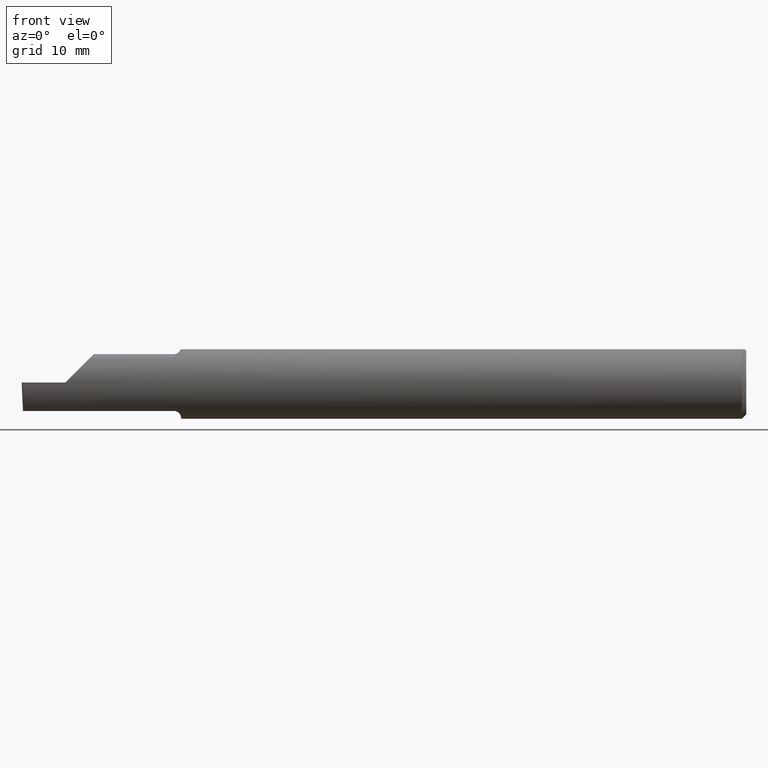
[diagram: clean part render]
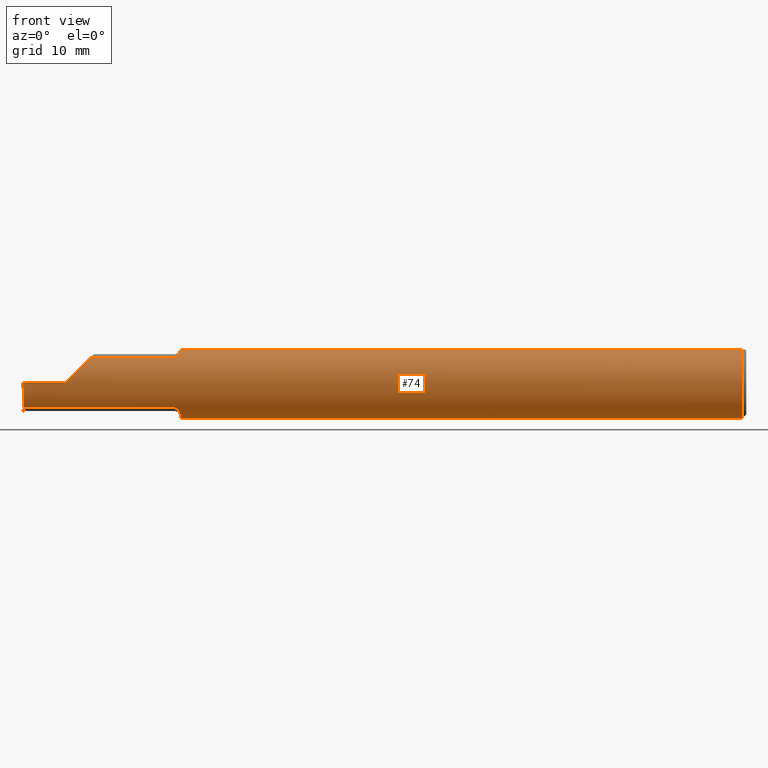
[diagram: same view with one face highlighted and labeled with its STEP entity id]
A machine part, front view. The second image highlights one B-rep face of the part: STEP entity #74.
In plain terms, the highlighted cylindrical surface (edge-blend (fillet) strip) has radius 3.1712 mm, axis along (1, -0, -0).
Its self-contained STEP definition (entity closure, byte-faithful):
#2 = LINE ( 'NONE', #576, #538 ) ;
#8 = CARTESIAN_POINT ( 'NONE',  ( -0.01499999999999987454, 0.04895916665957496944, 0.1148500000000000076 ) ) ;
#22 = CARTESIAN_POINT ( 'NONE',  ( -1.964990549600692527, -0.08554147198584205469, 0.09096407607062373391 ) ) ;
#26 = DIRECTION ( 'NONE',  ( 1.000000000000000000, -0.000000000000000000, -0.000000000000000000 ) ) ;
#35 = EDGE_CURVE ( 'NONE', #566, #480, #326, .T. ) ;
#38 = CARTESIAN_POINT ( 'NONE',  ( -1.960226514481664850, -0.07966992494485836129, -0.09623747760188229583 ) ) ;
#39 = LINE ( 'NONE', #390, #105 ) ;
#41 = CIRCLE ( 'NONE', #286, 0.1248500000000000026 ) ;
#44 = CARTESIAN_POINT ( 'NONE',  ( -1.951227715916084682, -0.04883822427082837314, -0.1150249279297937549 ) ) ;
#54 = CARTESIAN_POINT ( 'NONE',  ( -2.494835769263151537, -0.1248351010429638308, -0.03262966116142157480 ) ) ;
#56 = EDGE_CURVE ( 'NONE', #135, #236, #456, .T. ) ;
#58 = CARTESIAN_POINT ( 'NONE',  ( -0.01499999999999999944, 0.000000000000000000, 0.000000000000000000 ) ) ;
#62 = B_SPLINE_CURVE_WITH_KNOTS ( 'NONE', 3,
 ( #584, #279, #514, #396 ),
 .UNSPECIFIED., .F., .F.,
 ( 4, 4 ),
 ( 0.001640801893433564652, 0.002088276671954478626 ),
 .UNSPECIFIED. ) ;
#66 = DIRECTION ( 'NONE',  ( -1.000000000000000000, 0.000000000000000000, 0.000000000000000000 ) ) ;
#74 = ADVANCED_FACE ( 'NONE', ( #572 ), #506, .T. ) ;
#84 = CARTESIAN_POINT ( 'NONE',  ( -1.951326891871145719, -0.04895916665872705742, 0.1148500000000000076 ) ) ;
#91 = ORIENTED_EDGE ( 'NONE', *, *, #191, .T. ) ;
#92 = LINE ( 'NONE', #681, #148 ) ;
#94 = CARTESIAN_POINT ( 'NONE',  ( 0.000000000000000000, 0.000000000000000000, 0.000000000000000000 ) ) ;
#95 = LINE ( 'NONE', #588, #288 ) ;
#96 = B_SPLINE_CURVE_WITH_KNOTS ( 'NONE', 3,
 ( #348, #394, #99, #104, #339, #38, #283, #518, #771, #589, #44, #229 ),
 .UNSPECIFIED., .F., .F.,
 ( 4, 2, 2, 2, 2, 4 ),
 ( 1.963988863383734834E-07, 0.0002052720857047456236, 0.0004103477725231529033, 0.0008204991461599568919, 0.001230650519796760555, 0.001640801893433564652 ),
 .UNSPECIFIED. ) ;
#99 = CARTESIAN_POINT ( 'NONE',  ( -1.969784064659362954, -0.08911389870154516613, -0.08746251087962811366 ) ) ;
#104 = CARTESIAN_POINT ( 'NONE',  ( -1.965875432832431491, -0.08647060418110406876, -0.09007670266896511402 ) ) ;
#105 = VECTOR ( 'NONE', #343, 39.37007874015748854 ) ;
#107 = EDGE_CURVE ( 'NONE', #236, #480, #2, .T. ) ;
#117 = DIRECTION ( 'NONE',  ( 1.000000000000000000, -0.000000000000000000, -0.000000000000000000 ) ) ;
#118 = CARTESIAN_POINT ( 'NONE',  ( -1.950756598855983848, -0.04385000000000002091, -0.1168961077196328247 ) ) ;
#120 = VERTEX_POINT ( 'NONE', #8 ) ;
#124 = VERTEX_POINT ( 'NONE', #483 ) ;
#126 = CARTESIAN_POINT ( 'NONE',  ( -1.950000000000000178, 0.000000000000000000, 0.000000000000000000 ) ) ;
#130 = EDGE_CURVE ( 'NONE', #140, #124, #341, .T. ) ;
#135 = VERTEX_POINT ( 'NONE', #225 ) ;
#140 = VERTEX_POINT ( 'NONE', #526 ) ;
#148 = VECTOR ( 'NONE', #26, 39.37007874015748143 ) ;
#149 = CARTESIAN_POINT ( 'NONE',  ( -1.952489051389807884, -0.05793447593674593693, 0.1110239341513688666 ) ) ;
#154 = CARTESIAN_POINT ( 'NONE',  ( -2.263628075281542529, -0.09015216647662421812, 0.08637192471845822617 ) ) ;
#169 = DIRECTION ( 'NONE',  ( -1.000000000000000000, 0.000000000000000000, 0.000000000000000000 ) ) ;
#172 = CARTESIAN_POINT ( 'NONE',  ( -2.495690077103728921, -0.1248499999950965084, 1.733801157256528502E-17 ) ) ;
#176 = VERTEX_POINT ( 'NONE', #648 ) ;
#185 = CARTESIAN_POINT ( 'NONE',  ( -2.205999999999999961, -0.09015216647662482874, -0.08637192471845768493 ) ) ;
#187 = CARTESIAN_POINT ( 'NONE',  ( -2.350000000000000089, -0.1248500000000000026, 1.836970198721028825E-17 ) ) ;
#189 = CARTESIAN_POINT ( 'NONE',  ( 0.000000000000000000, -0.04895916665957456698, 0.1148500000000000076 ) ) ;
#191 = EDGE_CURVE ( 'NONE', #746, #301, #62, .T. ) ;
#225 = CARTESIAN_POINT ( 'NONE',  ( -1.951326891871145719, -0.04895916665872705742, 0.1148500000000000076 ) ) ;
#229 = CARTESIAN_POINT ( 'NONE',  ( -1.950756598855983848, -0.04385000000000002091, -0.1168961077196328247 ) ) ;
#230 = EDGE_CURVE ( 'NONE', #243, #746, #96, .T. ) ;
#235 = DIRECTION ( 'NONE',  ( 0.000000000000000000, 0.000000000000000000, 1.000000000000000000 ) ) ;
#236 = VERTEX_POINT ( 'NONE', #773 ) ;
#237 = DIRECTION ( 'NONE',  ( 0.000000000000000000, 0.000000000000000000, -1.000000000000000000 ) ) ;
#243 = VERTEX_POINT ( 'NONE', #472 ) ;
#247 = DIRECTION ( 'NONE',  ( -1.000000000000000000, 0.000000000000000000, 0.000000000000000000 ) ) ;
#251 = EDGE_CURVE ( 'NONE', #120, #140, #41, .T. ) ;
#254 = CARTESIAN_POINT ( 'NONE',  ( -1.972502509400819060, -0.09015216647698111319, 0.08637192471808595451 ) ) ;
#256 = ORIENTED_EDGE ( 'NONE', *, *, #330, .T. ) ;
#262 = EDGE_CURVE ( 'NONE', #124, #135, #782, .T. ) ;
#269 = DIRECTION ( 'NONE',  ( 1.000000000000000000, -0.000000000000000000, -0.000000000000000000 ) ) ;
#270 = VERTEX_POINT ( 'NONE', #353 ) ;
#272 = CARTESIAN_POINT ( 'NONE',  ( -1.974999999999999867, -0.09015216647662482874, 0.08637192471845768493 ) ) ;
#274 = EDGE_CURVE ( 'NONE', #176, #243, #475, .T. ) ;
#279 = CARTESIAN_POINT ( 'NONE',  ( -1.950242610568498236, -0.03840785182185597196, -0.1189375631818110762 ) ) ;
#283 = CARTESIAN_POINT ( 'NONE',  ( -1.958278800716857448, -0.07573621487658313556, -0.09938639293507189887 ) ) ;
#286 = AXIS2_PLACEMENT_3D ( 'NONE', #58, #247, #306 ) ;
#288 = VECTOR ( 'NONE', #458, 39.37007874015748143 ) ;
#292 = ORIENTED_EDGE ( 'NONE', *, *, #56, .T. ) ;
#301 = VERTEX_POINT ( 'NONE', #779 ) ;
#306 = DIRECTION ( 'NONE',  ( 0.000000000000000000, 0.000000000000000000, 1.000000000000000000 ) ) ;
#309 = DIRECTION ( 'NONE',  ( 0.000000000000000000, 0.000000000000000000, 1.000000000000000000 ) ) ;
#314 = VERTEX_POINT ( 'NONE', #720 ) ;
#320 = VERTEX_POINT ( 'NONE', #172 ) ;
#326 =( BOUNDED_CURVE ( )  B_SPLINE_CURVE ( 3, ( #187, #565, #631, #389 ),
 .UNSPECIFIED., .F., .T. ) 
 B_SPLINE_CURVE_WITH_KNOTS ( ( 4, 4 ),
 ( 4.712388980384690562, 5.476375539154175520 ),
 .UNSPECIFIED. ) 
 CURVE ( )  GEOMETRIC_REPRESENTATION_ITEM ( )  RATIONAL_B_SPLINE_CURVE ( ( 1.000000000000000000, 0.9519489620492029847, 0.9519489620492029847, 1.000000000000000000 ) ) 
 REPRESENTATION_ITEM ( '' )  );
#329 = CARTESIAN_POINT ( 'NONE',  ( -1.966486677516400494, -0.08696861555842282099, 0.08959154238194093345 ) ) ;
#330 = EDGE_CURVE ( 'NONE', #301, #314, #454, .T. ) ;
#339 = CARTESIAN_POINT ( 'NONE',  ( -1.964311064734461709, -0.08485061678078631431, -0.09161469295857084527 ) ) ;
#341 = CIRCLE ( 'NONE', #581, 0.1248500000000000026 ) ;
#343 = DIRECTION ( 'NONE',  ( -0.02617296143184116158, -0.0004568507411563384147, 0.9996573249755575929 ) ) ;
#348 = CARTESIAN_POINT ( 'NONE',  ( -1.974999999999999867, -0.09015216647662478711, -0.08637192471845771269 ) ) ;
#353 = CARTESIAN_POINT ( 'NONE',  ( -2.495688583004118666, -0.1248499869621840785, -5.705736120969982501E-05 ) ) ;
#356 = CARTESIAN_POINT ( 'NONE',  ( -2.494033449660867152, -0.09015216647662482874, -0.08637192471845768493 ) ) ;
#359 = CARTESIAN_POINT ( 'NONE',  ( -2.494256244271084721, -0.1126860773865890480, -0.06285177167860772629 ) ) ;
#360 = EDGE_CURVE ( 'NONE', #176, #270, #712, .T. ) ;
#364 = DIRECTION ( 'NONE',  ( -1.000000000000000000, 0.000000000000000000, 0.000000000000000000 ) ) ;
#370 = ORIENTED_EDGE ( 'NONE', *, *, #35, .F. ) ;
#389 = CARTESIAN_POINT ( 'NONE',  ( -2.263628075281542529, -0.09015216647662421812, 0.08637192471845822617 ) ) ;
#390 = CARTESIAN_POINT ( 'NONE',  ( -2.493072779947982820, -0.1248043149033065402, -0.09996577117162359916 ) ) ;
#394 = CARTESIAN_POINT ( 'NONE',  ( -1.972259638933031578, -0.09015216647662445404, -0.08637192471845808739 ) ) ;
#396 = CARTESIAN_POINT ( 'NONE',  ( -1.950000000000000178, -0.02715330672748003313, -0.1218614805168695830 ) ) ;
#402 = CARTESIAN_POINT ( 'NONE',  ( -0.01499999999999999944, 0.000000000000000000, 0.000000000000000000 ) ) ;
#404 = EDGE_CURVE ( 'NONE', #320, #566, #92, .T. ) ;
#417 = ORIENTED_EDGE ( 'NONE', *, *, #107, .T. ) ;
#418 = DIRECTION ( 'NONE',  ( 1.000000000000000000, -0.000000000000000000, -0.000000000000000000 ) ) ;
#426 = ORIENTED_EDGE ( 'NONE', *, *, #274, .T. ) ;
#427 = ORIENTED_EDGE ( 'NONE', *, *, #586, .F. ) ;
#433 = EDGE_LOOP ( 'NONE', ( #426, #530, #91, #256, #777, #686, #789, #464, #292, #417, #370, #674, #427, #683 ) ) ;
#454 = CIRCLE ( 'NONE', #724, 0.1248500000000000026 ) ;
#456 = B_SPLINE_CURVE_WITH_KNOTS ( 'NONE', 3,
 ( #84, #149, #602, #479, #606, #22, #329, #635, #254, #272 ),
 .UNSPECIFIED., .F., .F.,
 ( 4, 2, 2, 2, 4 ),
 ( 5.065792320370670028E-07, 0.0007388407001989994154, 0.001108007760682480809, 0.001292591290924221615, 0.001477174821165962420 ),
 .UNSPECIFIED. ) ;
#458 = DIRECTION ( 'NONE',  ( 1.000000000000000000, -0.000000000000000000, -0.000000000000000000 ) ) ;
#464 = ORIENTED_EDGE ( 'NONE', *, *, #262, .T. ) ;
#472 = CARTESIAN_POINT ( 'NONE',  ( -1.974999999999999867, -0.09015216647662478711, -0.08637192471845771269 ) ) ;
#475 = LINE ( 'NONE', #185, #493 ) ;
#479 = CARTESIAN_POINT ( 'NONE',  ( -1.959117122045868520, -0.07738857672815942224, 0.09808127502738656078 ) ) ;
#480 = VERTEX_POINT ( 'NONE', #154 ) ;
#483 = CARTESIAN_POINT ( 'NONE',  ( -0.01499999999999999944, -0.04895916665957456698, 0.1148500000000000076 ) ) ;
#493 = VECTOR ( 'NONE', #418, 39.37007874015748143 ) ;
#506 = CYLINDRICAL_SURFACE ( 'NONE', #764, 0.1248500000000000026 ) ;
#514 = CARTESIAN_POINT ( 'NONE',  ( -1.949999999999999956, -0.03284222813693380566, -0.1205938689030582739 ) ) ;
#518 = CARTESIAN_POINT ( 'NONE',  ( -1.955064983703084458, -0.06736177101644112708, -0.1052426774175050372 ) ) ;
#526 = CARTESIAN_POINT ( 'NONE',  ( -0.01499999999999999944, 0.000000000000000000, -0.1248500000000000026 ) ) ;
#530 = ORIENTED_EDGE ( 'NONE', *, *, #230, .T. ) ;
#536 = CARTESIAN_POINT ( 'NONE',  ( -2.495688583004118666, -0.1248499869621840785, -5.705736120969982501E-05 ) ) ;
#538 = VECTOR ( 'NONE', #66, 39.37007874015748143 ) ;
#549 = EDGE_CURVE ( 'NONE', #314, #120, #95, .T. ) ;
#565 = CARTESIAN_POINT ( 'NONE',  ( -2.317406910344188997, -0.1248500000000000304, 0.03259308965581166062 ) ) ;
#566 = VERTEX_POINT ( 'NONE', #704 ) ;
#572 = FACE_OUTER_BOUND ( 'NONE', #433, .T. ) ;
#576 = CARTESIAN_POINT ( 'NONE',  ( -2.205999999999999961, -0.09015216647662482874, 0.08637192471845768493 ) ) ;
#581 = AXIS2_PLACEMENT_3D ( 'NONE', #402, #169, #235 ) ;
#584 = CARTESIAN_POINT ( 'NONE',  ( -1.950756598855983848, -0.04385000000000002091, -0.1168961077196328247 ) ) ;
#586 = EDGE_CURVE ( 'NONE', #270, #320, #39, .T. ) ;
#588 = CARTESIAN_POINT ( 'NONE',  ( 0.000000000000000000, 0.04895916665957456698, 0.1148500000000000076 ) ) ;
#589 = CARTESIAN_POINT ( 'NONE',  ( -1.951929090759344287, -0.05370719728932717846, -0.1128289886859672186 ) ) ;
#602 = CARTESIAN_POINT ( 'NONE',  ( -1.954335346929612305, -0.06618116991694772411, 0.1062694618620801390 ) ) ;
#606 = CARTESIAN_POINT ( 'NONE',  ( -1.961053217927678949, -0.08094812012684990399, 0.09514231764822814186 ) ) ;
#625 = VECTOR ( 'NONE', #364, 39.37007874015748143 ) ;
#631 = CARTESIAN_POINT ( 'NONE',  ( -2.287163018370355072, -0.1127002472623169216, 0.06283698162964553025 ) ) ;
#635 = CARTESIAN_POINT ( 'NONE',  ( -1.970195245915135507, -0.08928014009840813670, 0.08728826463238045785 ) ) ;
#648 = CARTESIAN_POINT ( 'NONE',  ( -2.494033449660867152, -0.09015216647662482874, -0.08637192471845768493 ) ) ;
#674 = ORIENTED_EDGE ( 'NONE', *, *, #404, .F. ) ;
#681 = CARTESIAN_POINT ( 'NONE',  ( -3.749399456654637998E-32, -0.1248500000000000026, 3.061616997868380676E-16 ) ) ;
#683 = ORIENTED_EDGE ( 'NONE', *, *, #360, .F. ) ;
#686 = ORIENTED_EDGE ( 'NONE', *, *, #251, .T. ) ;
#704 = CARTESIAN_POINT ( 'NONE',  ( -2.350000000000000089, -0.1248500000000000026, 1.836970198721028825E-17 ) ) ;
#712 =( BOUNDED_CURVE ( )  B_SPLINE_CURVE ( 3, ( #356, #359, #54, #536 ),
 .UNSPECIFIED., .F., .F. ) 
 B_SPLINE_CURVE_WITH_KNOTS ( ( 4, 4 ),
 ( 0.2190942387645155864, 0.9826237902196512941 ),
 .UNSPECIFIED. ) 
 CURVE ( )  GEOMETRIC_REPRESENTATION_ITEM ( )  RATIONAL_B_SPLINE_CURVE ( ( 1.000000000000000000, 0.9520057322288819623, 0.9520057322288819623, 1.000000000000000000 ) ) 
 REPRESENTATION_ITEM ( '' )  );
#720 = CARTESIAN_POINT ( 'NONE',  ( -1.950000000000000178, 0.04895916665957496944, 0.1148500000000000076 ) ) ;
#724 = AXIS2_PLACEMENT_3D ( 'NONE', #126, #117, #237 ) ;
#746 = VERTEX_POINT ( 'NONE', #118 ) ;
#764 = AXIS2_PLACEMENT_3D ( 'NONE', #94, #269, #309 ) ;
#771 = CARTESIAN_POINT ( 'NONE',  ( -1.953850144156349167, -0.06295012366509135371, -0.1079450122012245855 ) ) ;
#773 = CARTESIAN_POINT ( 'NONE',  ( -1.974999999999999867, -0.09015216647662482874, 0.08637192471845768493 ) ) ;
#777 = ORIENTED_EDGE ( 'NONE', *, *, #549, .T. ) ;
#779 = CARTESIAN_POINT ( 'NONE',  ( -1.950000000000000178, -0.02715330672748003313, -0.1218614805168695830 ) ) ;
#782 = LINE ( 'NONE', #189, #625 ) ;
#789 = ORIENTED_EDGE ( 'NONE', *, *, #130, .T. ) ;